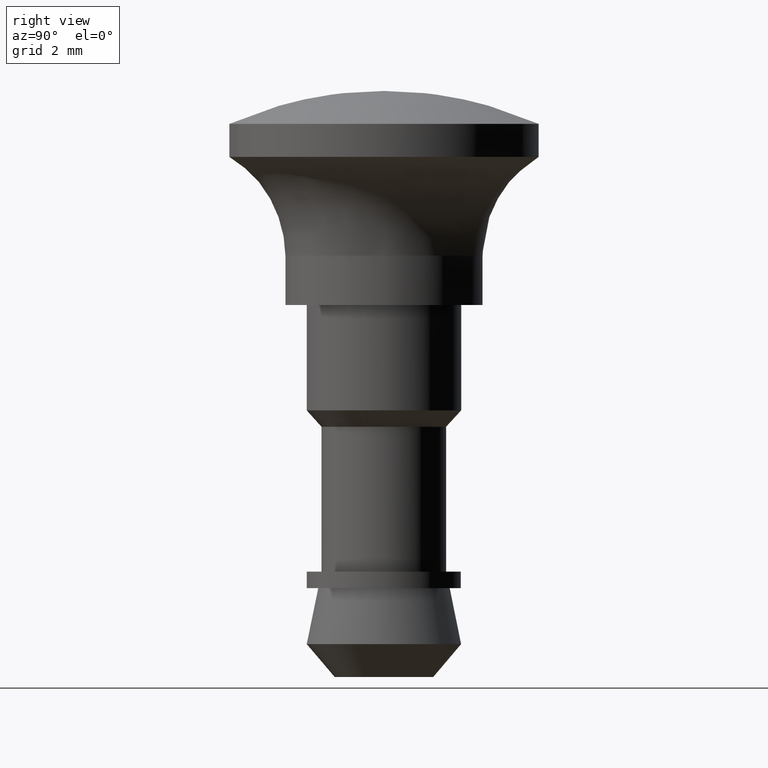
[diagram: clean part render]
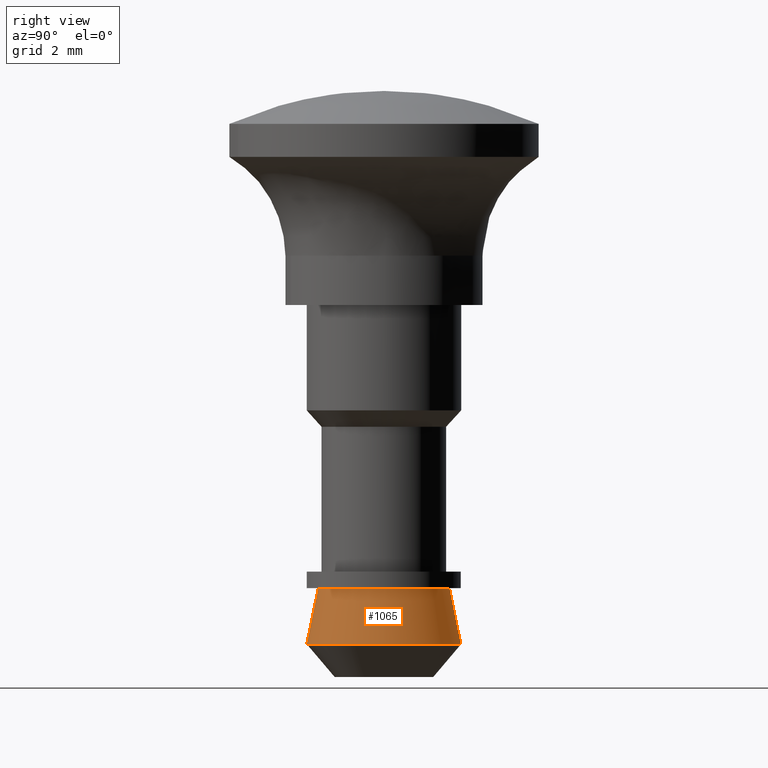
[diagram: same view with one face highlighted and labeled with its STEP entity id]
A machine part, right view. The second image highlights one B-rep face of the part: STEP entity #1065.
In plain terms, the highlighted face is a freeform B-spline surface patch.
Its self-contained STEP definition (entity closure, byte-faithful):
#956=CARTESIAN_POINT('',(0.227202948664240,1.978245531428845,-8.557499999999886));
#957=CARTESIAN_POINT('',(1.885626055177154,1.787774422587016,-8.557499999999886));
#958=CARTESIAN_POINT('',(1.987535917357521,0.121562904348783,-8.557499999999886));
#959=CARTESIAN_POINT('',(2.109098821706304,-1.865973013008738,-8.557499999999886));
#960=CARTESIAN_POINT('',(0.121562904348783,-1.987535917357521,-8.557499999999886));
#961=CARTESIAN_POINT('',(0.269159902476737,2.343562781402555,-10.343562500000006));
#962=CARTESIAN_POINT('',(2.233839517061509,2.117917888227049,-10.343562500000006));
#963=CARTESIAN_POINT('',(2.354568797764734,0.144011596995867,-10.343562500000010));
#964=CARTESIAN_POINT('',(2.498580394760601,-2.210557200768867,-10.343562500000006));
#965=CARTESIAN_POINT('',(0.144011596995867,-2.354568797764734,-10.343562500000010));
#973=(BOUNDED_SURFACE()B_SPLINE_SURFACE(2,1,((#956,#961),(#957,#962),(#958,#963),(#959,#964),(#960,#965)),.UNSPECIFIED.,.F.,.F.,.U.)B_SPLINE_SURFACE_WITH_KNOTS((3,2,3),(2,2),(0.0,3.439451310114360,7.347918707971590),(0.0,1.0),.UNSPECIFIED.)GEOMETRIC_REPRESENTATION_ITEM()RATIONAL_B_SPLINE_SURFACE(((0.938140952186599,0.938140952186599),(0.742253967444162,0.742253967444162),(1.0,1.0),(0.707106781186548,0.707106781186548),(1.0,1.0)))REPRESENTATION_ITEM('')SURFACE());
#974=CARTESIAN_POINT('',(0.268136562160147,2.334652604572247,-10.300000000003150));
#975=VERTEX_POINT('',#974);
#976=CARTESIAN_POINT('',(2.350000000000000,0.0,-10.300000000000001));
#977=VERTEX_POINT('',#976);
#978=CARTESIAN_POINT('',(0.268136562160147,2.334652604572247,-10.300000000003145));
#979=CARTESIAN_POINT('',(2.350000000000000,2.095549063402899,-10.300000000000001));
#980=CARTESIAN_POINT('',(2.350000000000000,0.0,-10.300000000000001));
#988=(BOUNDED_CURVE()B_SPLINE_CURVE(2,(#978,#979,#980),.UNSPECIFIED.,.F.,.U.)B_SPLINE_CURVE_WITH_KNOTS((3,3),(0.269767755879542,0.500000000000000),.UNSPECIFIED.)CURVE()GEOMETRIC_REPRESENTATION_ITEM()RATIONAL_B_SPLINE_CURVE((0.957343736454879,0.730266147779657,1.0))REPRESENTATION_ITEM(''));
#989=EDGE_CURVE('',#975,#977,#988,.T.);
#990=ORIENTED_EDGE('',*,*,#989,.F.);
#991=CARTESIAN_POINT('',(0.228201329499123,1.986938386869895,-8.600000000002741));
#992=VERTEX_POINT('',#991);
#993=CARTESIAN_POINT('',(0.228201329499123,1.986938386869895,-8.600000000002741));
#994=CARTESIAN_POINT('',(0.268136562160147,2.334652604572247,-10.300000000003150));
#995=QUASI_UNIFORM_CURVE('',1,(#993,#994),.UNSPECIFIED.,.F.,.U.);
#996=EDGE_CURVE('',#992,#975,#995,.T.);
#997=ORIENTED_EDGE('',*,*,#996,.F.);
#998=CARTESIAN_POINT('',(2.0,0.0,-8.599999999999890));
#999=VERTEX_POINT('',#998);
#1000=CARTESIAN_POINT('',(0.228201329499123,1.986938386869895,-8.600000000002741));
#1001=CARTESIAN_POINT('',(2.0,1.783446011404694,-8.599999999999890));
#1002=CARTESIAN_POINT('',(2.0,0.0,-8.599999999999890));
#1010=(BOUNDED_CURVE()B_SPLINE_CURVE(2,(#1000,#1001,#1002),.UNSPECIFIED.,.F.,.U.)B_SPLINE_CURVE_WITH_KNOTS((3,3),(0.269767755879733,0.500000000000000),.UNSPECIFIED.)CURVE()GEOMETRIC_REPRESENTATION_ITEM()RATIONAL_B_SPLINE_CURVE((0.957343736454502,0.730266147779882,1.0))REPRESENTATION_ITEM(''));
#1011=EDGE_CURVE('',#992,#999,#1010,.T.);
#1012=ORIENTED_EDGE('',*,*,#1011,.T.);
#1013=CARTESIAN_POINT('',(0.122097079078976,-1.996269596843437,-8.600000000001245));
#1014=VERTEX_POINT('',#1013);
#1015=CARTESIAN_POINT('',(2.0,0.0,-8.599999999999890));
#1016=CARTESIAN_POINT('',(2.0,-1.881412133793937,-8.599999999999891));
#1017=CARTESIAN_POINT('',(0.122097079078976,-1.996269596843437,-8.600000000001245));
#1025=(BOUNDED_CURVE()B_SPLINE_CURVE(2,(#1015,#1016,#1017),.UNSPECIFIED.,.F.,.U.)B_SPLINE_CURVE_WITH_KNOTS((3,3),(0.500000000000000,0.739332962240371),.UNSPECIFIED.)CURVE()GEOMETRIC_REPRESENTATION_ITEM()RATIONAL_B_SPLINE_CURVE((1.0,0.719603993285038,0.976072041669778))REPRESENTATION_ITEM(''));
#1026=EDGE_CURVE('',#999,#1014,#1025,.T.);
#1027=ORIENTED_EDGE('',*,*,#1026,.T.);
#1028=CARTESIAN_POINT('',(0.143463870687620,-2.345616745525311,-10.299999792363820));
#1029=VERTEX_POINT('',#1028);
#1030=CARTESIAN_POINT('',(0.122097079078976,-1.996269596843437,-8.600000000001245));
#1031=CARTESIAN_POINT('',(0.143463870687620,-2.345616745525311,-10.299999792363820));
#1032=QUASI_UNIFORM_CURVE('',1,(#1030,#1031),.UNSPECIFIED.,.F.,.U.);
#1033=EDGE_CURVE('',#1014,#1029,#1032,.T.);
#1034=ORIENTED_EDGE('',*,*,#1033,.T.);
#1035=CARTESIAN_POINT('',(0.184378462736451,-2.342755330924158,-10.300000511055121));
#1036=VERTEX_POINT('',#1035);
#1037=CARTESIAN_POINT('',(0.184378462736451,-2.342755330924159,-10.300000511055124));
#1038=CARTESIAN_POINT('',(0.163933382386201,-2.344364822794457,-10.300000000000002));
#1039=CARTESIAN_POINT('',(0.143463870687620,-2.345616745525311,-10.299999792363824));
#1047=(BOUNDED_CURVE()B_SPLINE_CURVE(2,(#1037,#1038,#1039),.UNSPECIFIED.,.F.,.U.)B_SPLINE_CURVE_WITH_KNOTS((3,3),(0.736331355971056,0.739332990873460),.UNSPECIFIED.)CURVE()GEOMETRIC_REPRESENTATION_ITEM()RATIONAL_B_SPLINE_CURVE((0.969723471658631,0.972855564741478,0.976072103035946))REPRESENTATION_ITEM(''));
#1048=EDGE_CURVE('',#1036,#1029,#1047,.T.);
#1049=ORIENTED_EDGE('',*,*,#1048,.F.);
#1050=CARTESIAN_POINT('',(2.350000000000000,0.0,-10.300000000000001));
#1051=CARTESIAN_POINT('',(2.350000000000000,-2.172318358820623,-10.300000000000001));
#1052=CARTESIAN_POINT('',(0.184378462736451,-2.342755330924157,-10.300000511055124));
#1060=(BOUNDED_CURVE()B_SPLINE_CURVE(2,(#1050,#1051,#1052),.UNSPECIFIED.,.F.,.U.)B_SPLINE_CURVE_WITH_KNOTS((3,3),(0.500000000000000,0.736331355971056),.UNSPECIFIED.)CURVE()GEOMETRIC_REPRESENTATION_ITEM()RATIONAL_B_SPLINE_CURVE((1.0,0.723120593772359,0.969723471658631))REPRESENTATION_ITEM(''));
#1061=EDGE_CURVE('',#977,#1036,#1060,.T.);
#1062=ORIENTED_EDGE('',*,*,#1061,.F.);
#1063=EDGE_LOOP('',(#990,#997,#1012,#1027,#1034,#1049,#1062));
#1064=FACE_OUTER_BOUND('',#1063,.T.);
#1065=ADVANCED_FACE('',(#1064),#973,.T.);